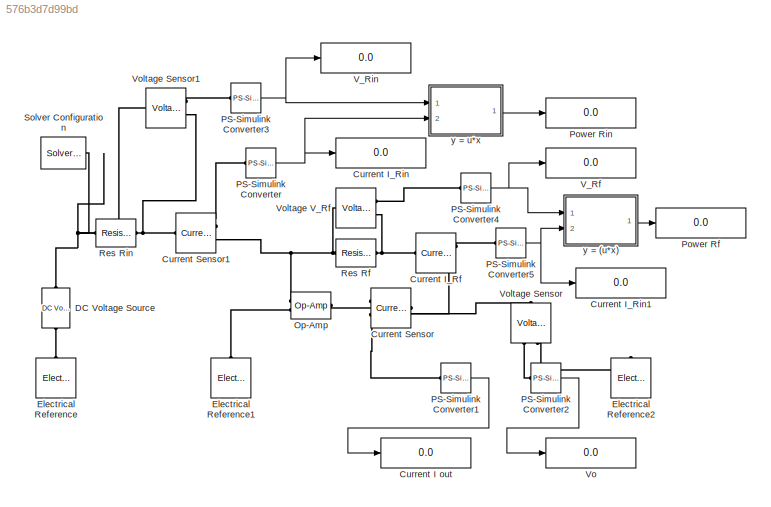
MODEL slx_576b3d7d99bd
KIND model
BLOCK [Display] Current I out
  Decimation = 1
  Lockdown = off
  Ports = [1]
BLOCK [Reference] Current I_Rf  REF=fl_lib/Electrical/Electrical Sensors/Current Sensor
  ClassName = current
  ComponentPath = foundation.electrical.sensors.current
  ComponentVariantNames = current
  ComponentVariants = foundation.electrical.sensors.current
  LocalVarDescs = |i1|v1
  LocalVarLogging = [0 0]
  LocalVarNames = |i1|v1
  Ports = [0, 0, 0, 0, 0, 1, 2]
  SchemaVersion = 1
  SourceBlock = fl_lib/Electrical/Electrical Sensors/Current Sensor
  SourceFile = foundation.electrical.sensors.current
  SourceType = Current Sensor
  i1_Log = off
  v1_Log = off
BLOCK [Display] Current I_Rin
  Decimation = 1
  Lockdown = off
  Ports = [1]
BLOCK [Display] Current I_Rin1
  Decimation = 1
  Lockdown = off
  Ports = [1]
BLOCK [Reference] Current Sensor  REF=fl_lib/Electrical/Electrical Sensors/Current Sensor
  ClassName = current
  ComponentPath = foundation.electrical.sensors.current
  ComponentVariantNames = current
  ComponentVariants = foundation.electrical.sensors.current
  LocalVarDescs = |i1|v1
  LocalVarLogging = [0 0]
  LocalVarNames = |i1|v1
  Ports = [0, 0, 0, 0, 0, 1, 2]
  SchemaVersion = 1
  SourceBlock = fl_lib/Electrical/Electrical Sensors/Current Sensor
  SourceFile = foundation.electrical.sensors.current
  SourceType = Current Sensor
  i1_Log = off
  v1_Log = off
BLOCK [Reference] Current Sensor1  REF=fl_lib/Electrical/Electrical Sensors/Current Sensor
  ClassName = current
  ComponentPath = foundation.electrical.sensors.current
  ComponentVariantNames = current
  ComponentVariants = foundation.electrical.sensors.current
  LocalVarDescs = |i1|v1
  LocalVarLogging = [0 0]
  LocalVarNames = |i1|v1
  Ports = [0, 0, 0, 0, 0, 1, 2]
  SchemaVersion = 1
  SourceBlock = fl_lib/Electrical/Electrical Sensors/Current Sensor
  SourceFile = foundation.electrical.sensors.current
  SourceType = Current Sensor
  i1_Log = off
  v1_Log = off
BLOCK [Reference] DC Voltage Source  REF=fl_lib/Electrical/Electrical Sources/DC Voltage Source
  ClassName = dc_voltage
  ComponentPath = foundation.electrical.sources.dc_voltage
  ComponentVariantNames = dc_voltage
  ComponentVariants = foundation.electrical.sources.dc_voltage
  LocalVarDescs = |i|v
  LocalVarLogging = [0 0]
  LocalVarNames = |i|v
  Ports = [0, 0, 0, 0, 0, 1, 1]
  SchemaVersion = 1
  SourceBlock = fl_lib/Electrical/Electrical Sources/DC Voltage Source
  SourceFile = foundation.electrical.sources.dc_voltage
  SourceType = DC Voltage Source
  i_Log = off
  v0 = 5
  v0_unit = V
  v_Log = off
BLOCK [Reference] Electrical Reference  REF=fl_lib/Electrical/Electrical Elements/Electrical Reference
  ClassName = reference
  ComponentPath = foundation.electrical.elements.reference
  ComponentVariantNames = reference
  ComponentVariants = foundation.electrical.elements.reference
  LocalVarDescs = |i
  LocalVarLogging = 0
  LocalVarNames = |i
  Ports = [0, 0, 0, 0, 0, 1]
  SchemaVersion = 1
  SourceBlock = fl_lib/Electrical/Electrical Elements/Electrical Reference
  SourceFile = foundation.electrical.elements.reference
  SourceType = Electrical Reference
  i_Log = off
BLOCK [Reference] Electrical Reference1  REF=fl_lib/Electrical/Electrical Elements/Electrical Reference
  ClassName = reference
  ComponentPath = foundation.electrical.elements.reference
  ComponentVariantNames = reference
  ComponentVariants = foundation.electrical.elements.reference
  LocalVarDescs = |i
  LocalVarLogging = 0
  LocalVarNames = |i
  Ports = [0, 0, 0, 0, 0, 1]
  SchemaVersion = 1
  SourceBlock = fl_lib/Electrical/Electrical Elements/Electrical Reference
  SourceFile = foundation.electrical.elements.reference
  SourceType = Electrical Reference
  i_Log = off
BLOCK [Reference] Electrical Reference2  REF=fl_lib/Electrical/Electrical Elements/Electrical Reference
  ClassName = reference
  ComponentPath = foundation.electrical.elements.reference
  ComponentVariantNames = reference
  ComponentVariants = foundation.electrical.elements.reference
  LocalVarDescs = |i
  LocalVarLogging = 0
  LocalVarNames = |i
  Ports = [0, 0, 0, 0, 0, 1]
  SchemaVersion = 1
  SourceBlock = fl_lib/Electrical/Electrical Elements/Electrical Reference
  SourceFile = foundation.electrical.elements.reference
  SourceType = Electrical Reference
  i_Log = off
BLOCK [Reference] Op-Amp  REF=fl_lib/Electrical/Electrical Elements/Op-Amp
  ClassName = op_amp
  ComponentPath = foundation.electrical.elements.op_amp
  ComponentVariantNames = op_amp
  ComponentVariants = foundation.electrical.elements.op_amp
  LocalVarDescs = |i1|v1|outI
  LocalVarLogging = [0 0 0]
  LocalVarNames = |i1|v1|outI
  Ports = [0, 0, 0, 0, 0, 2, 1]
  SchemaVersion = 1
  SourceBlock = fl_lib/Electrical/Electrical Elements/Op-Amp
  SourceFile = foundation.electrical.elements.op_amp
  SourceType = Op-Amp
  i1_Log = off
  outI_Log = off
  v1_Log = off
BLOCK [Reference] PS-Simulink Converter  REF=nesl_utility/PS-Simulink
Converter
  AffineConversion = off
  Frequencies = []
  LeftPortType = input
  PhysicalDomain = network_engine_domain
  Ports = [0, 1, 0, 0, 0, 1]
  PseudoPeriodic = off
  RightPortType = output
  SourceBlock = nesl_utility/PS-Simulink\nConverter
  SourceType = PS-Simulink\nConverter
  SubClassName = ps_output
  Unit = 1
BLOCK [Reference] PS-Simulink Converter1  REF=nesl_utility/PS-Simulink
Converter
  AffineConversion = off
  Frequencies = []
  LeftPortType = input
  PhysicalDomain = network_engine_domain
  Ports = [0, 1, 0, 0, 0, 1]
  PseudoPeriodic = off
  RightPortType = output
  SourceBlock = nesl_utility/PS-Simulink\nConverter
  SourceType = PS-Simulink\nConverter
  SubClassName = ps_output
  Unit = 1
BLOCK [Reference] PS-Simulink Converter2  REF=nesl_utility/PS-Simulink
Converter
  AffineConversion = off
  Frequencies = []
  LeftPortType = input
  PhysicalDomain = network_engine_domain
  Ports = [0, 1, 0, 0, 0, 1]
  PseudoPeriodic = off
  RightPortType = output
  SourceBlock = nesl_utility/PS-Simulink\nConverter
  SourceType = PS-Simulink\nConverter
  SubClassName = ps_output
  Unit = 1
BLOCK [Reference] PS-Simulink Converter3  REF=nesl_utility/PS-Simulink
Converter
  AffineConversion = off
  Frequencies = []
  LeftPortType = input
  PhysicalDomain = network_engine_domain
  Ports = [0, 1, 0, 0, 0, 1]
  PseudoPeriodic = off
  RightPortType = output
  SourceBlock = nesl_utility/PS-Simulink\nConverter
  SourceType = PS-Simulink\nConverter
  SubClassName = ps_output
  Unit = 1
BLOCK [Reference] PS-Simulink Converter4  REF=nesl_utility/PS-Simulink
Converter
  AffineConversion = off
  Frequencies = []
  LeftPortType = input
  PhysicalDomain = network_engine_domain
  Ports = [0, 1, 0, 0, 0, 1]
  PseudoPeriodic = off
  RightPortType = output
  SourceBlock = nesl_utility/PS-Simulink\nConverter
  SourceType = PS-Simulink\nConverter
  SubClassName = ps_output
  Unit = 1
BLOCK [Reference] PS-Simulink Converter5  REF=nesl_utility/PS-Simulink
Converter
  AffineConversion = off
  Frequencies = []
  LeftPortType = input
  PhysicalDomain = network_engine_domain
  Ports = [0, 1, 0, 0, 0, 1]
  PseudoPeriodic = off
  RightPortType = output
  SourceBlock = nesl_utility/PS-Simulink\nConverter
  SourceType = PS-Simulink\nConverter
  SubClassName = ps_output
  Unit = 1
BLOCK [Display] Power Rf
  Decimation = 1
  Lockdown = off
  Ports = [1]
BLOCK [Display] Power Rin
  Decimation = 1
  Lockdown = off
  Ports = [1]
BLOCK [Reference] Res Rf  REF=fl_lib/Electrical/Electrical Elements/Resistor
  ClassName = resistor
  ComponentPath = foundation.electrical.elements.resistor
  ComponentVariantNames = resistor
  ComponentVariants = foundation.electrical.elements.resistor
  LocalVarDescs = |i|v
  LocalVarLogging = [0 0]
  LocalVarNames = |i|v
  Ports = [0, 0, 0, 0, 0, 1, 1]
  R = 10000
  R_unit = Ohm
  SchemaVersion = 1
  SourceBlock = fl_lib/Electrical/Electrical Elements/Resistor
  SourceFile = foundation.electrical.elements.resistor
  SourceType = Resistor
  i_Log = off
  v_Log = off
BLOCK [Reference] Res Rin   REF=fl_lib/Electrical/Electrical Elements/Resistor
  ClassName = resistor
  ComponentPath = foundation.electrical.elements.resistor
  ComponentVariantNames = resistor
  ComponentVariants = foundation.electrical.elements.resistor
  LocalVarDescs = |i|v
  LocalVarLogging = [0 0]
  LocalVarNames = |i|v
  Ports = [0, 0, 0, 0, 0, 1, 1]
  R = 1000
  R_unit = Ohm
  SchemaVersion = 1
  SourceBlock = fl_lib/Electrical/Electrical Elements/Resistor
  SourceFile = foundation.electrical.elements.resistor
  SourceType = Resistor
  i_Log = off
  v_Log = off
BLOCK [Reference] Solver Configuration  REF=nesl_utility/Solver
Configuration
  Accelerate = off
  DelaysMemoryBudget = 1024
  DoDC = off
  DoFixedCost = off
  EnableSwitchedLinearOptims = on
  FrequencyDomain = off
  Harmonics = []
  LeftPortType = input
  LinearAlgebra = Sparse
  LocalSolverChoice = NE_BACKWARD_EULER_ADVANCER
  LocalSolverSampleTime = 0.001
  MaxModeIter = 2
  MaxNonlinIter = 3
  PhysicalDomain = network_engine_domain
  Ports = [0, 0, 0, 0, 0, 0, 1]
  Profile = off
  ResidualTolerance = 1e-09
  RightPortType = generic
  SimulateNoise = off
  SourceBlock = nesl_utility/Solver\nConfiguration
  SourceType = Solver\nConfiguration
  SubClassName = solver
  Tones = []
  UseCCode = off
  UseLocalSampling = off
  UseLocalSolver = off
  UseNewInitialization = off
BLOCK [Display] V_Rf
  Decimation = 1
  Lockdown = off
  Ports = [1]
BLOCK [Display] V_Rin
  Decimation = 1
  Lockdown = off
  Ports = [1]
BLOCK [Display] Vo
  Decimation = 1
  Lockdown = off
  Ports = [1]
BLOCK [Reference] Voltage Sensor  REF=fl_lib/Electrical/Electrical Sensors/Voltage Sensor
  ClassName = voltage
  ComponentPath = foundation.electrical.sensors.voltage
  ComponentVariantNames = voltage
  ComponentVariants = foundation.electrical.sensors.voltage
  LocalVarDescs = |i1|v1
  LocalVarLogging = [0 0]
  LocalVarNames = |i1|v1
  Ports = [0, 0, 0, 0, 0, 1, 2]
  SchemaVersion = 1
  SourceBlock = fl_lib/Electrical/Electrical Sensors/Voltage Sensor
  SourceFile = foundation.electrical.sensors.voltage
  SourceType = Voltage Sensor
  i1_Log = off
  v1_Log = off
BLOCK [Reference] Voltage Sensor1  REF=fl_lib/Electrical/Electrical Sensors/Voltage Sensor
  ClassName = voltage
  ComponentPath = foundation.electrical.sensors.voltage
  ComponentVariantNames = voltage
  ComponentVariants = foundation.electrical.sensors.voltage
  LocalVarDescs = |i1|v1
  LocalVarLogging = [0 0]
  LocalVarNames = |i1|v1
  Ports = [0, 0, 0, 0, 0, 1, 2]
  SchemaVersion = 1
  SourceBlock = fl_lib/Electrical/Electrical Sensors/Voltage Sensor
  SourceFile = foundation.electrical.sensors.voltage
  SourceType = Voltage Sensor
  i1_Log = off
  v1_Log = off
BLOCK [Reference] Voltage V_Rf  REF=fl_lib/Electrical/Electrical Sensors/Voltage Sensor
  ClassName = voltage
  ComponentPath = foundation.electrical.sensors.voltage
  ComponentVariantNames = voltage
  ComponentVariants = foundation.electrical.sensors.voltage
  LocalVarDescs = |i1|v1
  LocalVarLogging = [0 0]
  LocalVarNames = |i1|v1
  Ports = [0, 0, 0, 0, 0, 1, 2]
  SchemaVersion = 1
  SourceBlock = fl_lib/Electrical/Electrical Sensors/Voltage Sensor
  SourceFile = foundation.electrical.sensors.voltage
  SourceType = Voltage Sensor
  i1_Log = off
  v1_Log = off
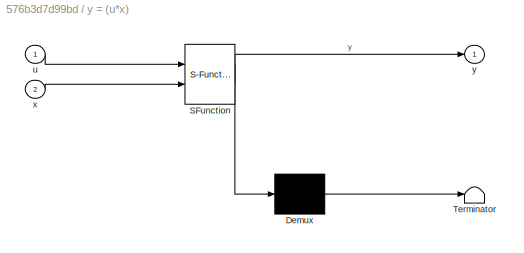
BLOCK [SubSystem] y = (u*x)
  ErrorFcn = Stateflow.Translate.translate
  FunctionWithSeparateData = off
  MaskHideContents = off
  MinAlgLoopOccurrences = off
  Opaque = off
  PermitHierarchicalResolution = ExplicitOnly
  Ports = [2, 1]
  PropExecContextOutsideSubsystem = off
  RTWSystemCode = Auto
  RequestExecContextInheritance = off
  SFBlockType = MATLAB Function
  TreatAsAtomicUnit = on
BLOCK [Demux] y = (u*x)/ Demux 
  Outputs = 1
  Ports = [1, 1]
BLOCK [S-Function] y = (u*x)/ SFunction 
  EnableBusSupport = on
  FunctionName = sf_sfun
  PortCounts = [2 2]
  Ports = [2, 2]
  Tag = Stateflow S-Function prob2_sim 1
BLOCK [Terminator] y = (u*x)/ Terminator 
BLOCK [Inport] y = (u*x)/u
  IconDisplay = Port number
BLOCK [Inport] y = (u*x)/x
  IconDisplay = Port number
  Port = 2
BLOCK [Outport] y = (u*x)/y
  IconDisplay = Port number
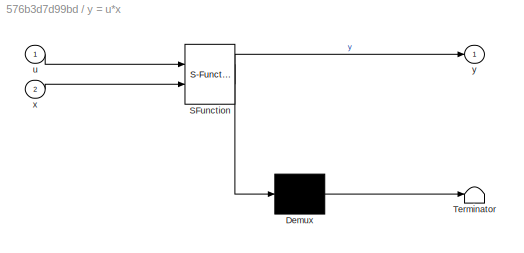
BLOCK [SubSystem] y = u*x
  ErrorFcn = Stateflow.Translate.translate
  FunctionWithSeparateData = off
  MaskHideContents = off
  MinAlgLoopOccurrences = off
  Opaque = off
  PermitHierarchicalResolution = ExplicitOnly
  Ports = [2, 1]
  PropExecContextOutsideSubsystem = off
  RTWSystemCode = Auto
  RequestExecContextInheritance = off
  SFBlockType = MATLAB Function
  TreatAsAtomicUnit = on
BLOCK [Demux] y = u*x/ Demux 
  Outputs = 1
  Ports = [1, 1]
BLOCK [S-Function] y = u*x/ SFunction 
  EnableBusSupport = on
  FunctionName = sf_sfun
  PortCounts = [2 2]
  Ports = [2, 2]
  Tag = Stateflow S-Function prob2_sim 2
BLOCK [Terminator] y = u*x/ Terminator 
BLOCK [Inport] y = u*x/u
  IconDisplay = Port number
BLOCK [Inport] y = u*x/x
  IconDisplay = Port number
  Port = 2
BLOCK [Outport] y = u*x/y
  IconDisplay = Port number
LINE PS-Simulink Converter1:1 -> Current I out:1
LINE PS-Simulink Converter2:1 -> Vo:1
NET PS-Simulink Converter3:1 -> V_Rin:1, y = u*x:1
NET PS-Simulink Converter4:1 -> V_Rf:1, y = (u*x):1
NET PS-Simulink Converter5:1 -> Current I_Rin1:1, y = (u*x):2
NET PS-Simulink Converter:1 -> Current I_Rin:1, y = u*x:2
LINE y = (u*x):1 -> Power Rf:1
LINE y = u*x:1 -> Power Rin:1
PNET net1: Current I_Rf:LConn1 -- Res Rf:RConn1 -- Voltage V_Rf:RConn2
PLINE Current I_Rf:RConn1 -- PS-Simulink Converter5:LConn1
PNET net2: Current I_Rf:RConn2 -- Current Sensor:RConn2 -- Voltage Sensor:LConn1
PNET net3: Current Sensor1:LConn1 -- Res Rin :RConn1 -- Voltage Sensor1:RConn2
PLINE Current Sensor1:RConn1 -- PS-Simulink Converter:LConn1
PNET net4: Current Sensor1:RConn2 -- Op-Amp:LConn1 -- Res Rf:LConn1 -- Voltage V_Rf:LConn1
PLINE Current Sensor:LConn1 -- Op-Amp:RConn1
PLINE Current Sensor:RConn1 -- PS-Simulink Converter1:LConn1
PNET net5: DC Voltage Source:LConn1 -- Res Rin :LConn1 -- Solver Configuration:RConn1 -- Voltage Sensor1:LConn1
PLINE DC Voltage Source:RConn1 -- Electrical Reference:LConn1
PLINE Electrical Reference1:LConn1 -- Op-Amp:LConn2
PLINE Electrical Reference2:LConn1 -- Voltage Sensor:RConn2
PLINE PS-Simulink Converter2:LConn1 -- Voltage Sensor:RConn1
PLINE PS-Simulink Converter3:LConn1 -- Voltage Sensor1:RConn1
PLINE PS-Simulink Converter4:LConn1 -- Voltage V_Rf:RConn1
note: NET lines group one-source signal fan-out (src -> all destinations, sorted); 1:1 wires keep LINE; PNET lines group multi-terminal physical nets as a canonical sorted terminal list (undirected conserving connections); 2-terminal nets keep the pairwise PLINE form
